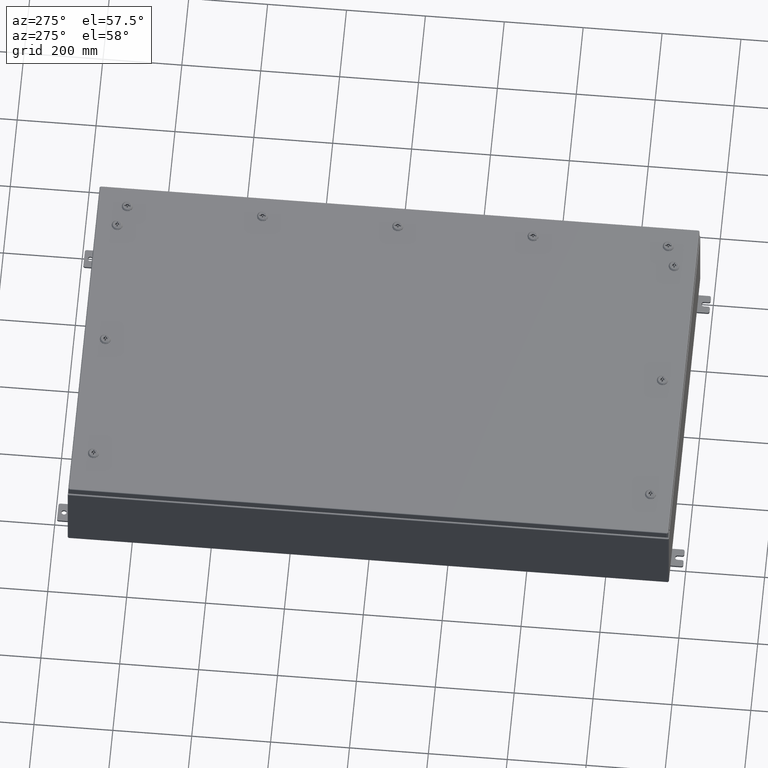
[diagram: clean part render]
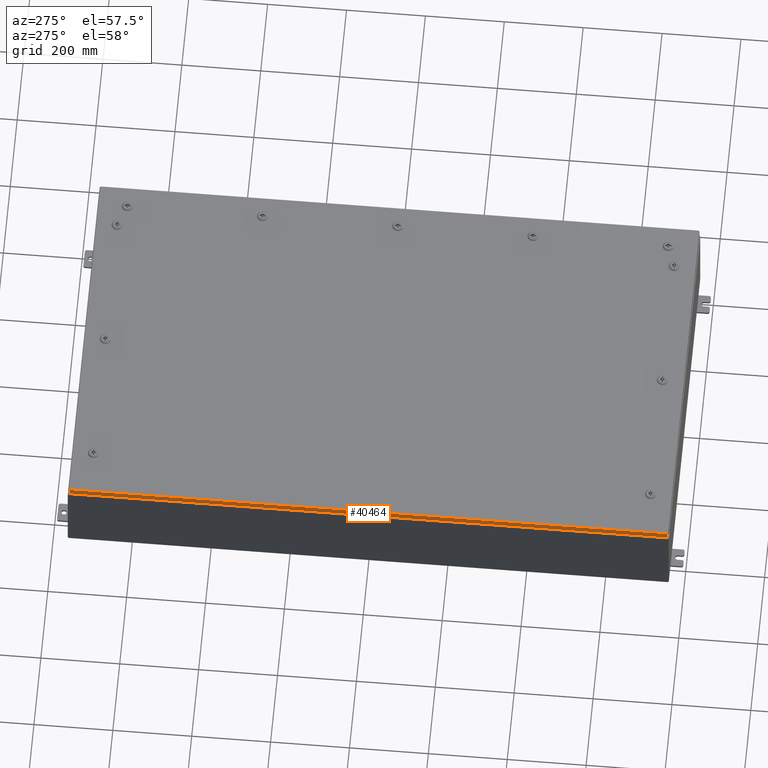
[diagram: same view with one face highlighted and labeled with its STEP entity id]
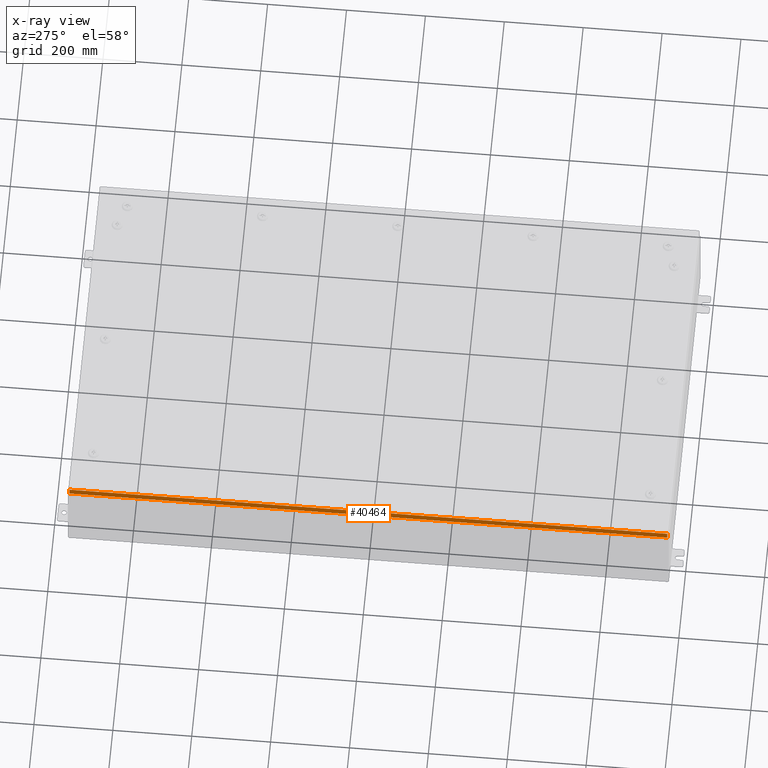
[diagram: x-ray of the same camera — body ghosted, the highlighted face saturated]
A machine part, auxiliary view. The second image highlights one B-rep face of the part: STEP entity #40464.
The next image is the same camera in x-ray: the body ghosted, the highlighted face saturated — about 0% of this face is hidden behind the body in this view.
In plain terms, the highlighted planar face has unit normal (1, -0, -0).
Its self-contained STEP definition (entity closure, byte-faithful):
#992 = VERTEX_POINT ( 'NONE', #52677 ) ;
#1313 = EDGE_LOOP ( 'NONE', ( #9502, #9865, #52238, #65732 ) ) ;
#3720 = FACE_OUTER_BOUND ( 'NONE', #1313, .T. ) ;
#4888 = VECTOR ( 'NONE', #61884, 39.37007874015748100 ) ;
#5756 = CARTESIAN_POINT ( 'NONE',  ( -17.93749999999999600, 29.84865786437627500, -0.08769999999999567000 ) ) ;
#5802 = DIRECTION ( 'NONE',  ( -7.300136601023486500E-017, -1.000000000000000000, -7.300136601023502500E-017 ) ) ;
#9502 = ORIENTED_EDGE ( 'NONE', *, *, #39392, .F. ) ;
#9775 = LINE ( 'NONE', #66155, #50664 ) ;
#9865 = ORIENTED_EDGE ( 'NONE', *, *, #24947, .T. ) ;
#9929 = DIRECTION ( 'NONE',  ( 1.000000000000000000, -7.300136601023464300E-017, -3.034122441942816500E-015 ) ) ;
#13304 = EDGE_CURVE ( 'NONE', #61148, #43018, #34972, .T. ) ;
#17044 = CARTESIAN_POINT ( 'NONE',  ( -17.93750000000000000, -29.84865786437625700, -0.07469999999999976700 ) ) ;
#17997 = LINE ( 'NONE', #17044, #58984 ) ;
#24720 = LINE ( 'NONE', #48562, #65669 ) ;
#24947 = EDGE_CURVE ( 'NONE', #28314, #43018, #9775, .T. ) ;
#28314 = VERTEX_POINT ( 'NONE', #5756 ) ;
#34104 = DIRECTION ( 'NONE',  ( -3.034122441942816500E-015, 6.982962677686267500E-015, -1.000000000000000000 ) ) ;
#34972 = LINE ( 'NONE', #45723, #4888 ) ;
#39392 = EDGE_CURVE ( 'NONE', #28314, #992, #24720, .T. ) ;
#39488 = EDGE_CURVE ( 'NONE', #992, #61148, #17997, .T. ) ;
#39739 = CARTESIAN_POINT ( 'NONE',  ( -17.93750000000000000, -29.84865786437625300, -0.7949999999999996000 ) ) ;
#40464 = ADVANCED_FACE ( 'NONE', ( #3720 ), #57816, .F. ) ;
#40879 = AXIS2_PLACEMENT_3D ( 'NONE', #41900, #9929, #47276 ) ;
#41900 = CARTESIAN_POINT ( 'NONE',  ( -17.93749999999999600, 1.309462002808583700E-015, 5.468538495836083800E-014 ) ) ;
#43018 = VERTEX_POINT ( 'NONE', #55446 ) ;
#45723 = CARTESIAN_POINT ( 'NONE',  ( -17.93750000000000000, -29.93749999999998900, -0.7949999999999997100 ) ) ;
#47276 = DIRECTION ( 'NONE',  ( -3.034122441942816500E-015, 0.0000000000000000000, -1.000000000000000000 ) ) ;
#48562 = CARTESIAN_POINT ( 'NONE',  ( -17.93750000000000000, -29.93749999999998900, -0.08770000000000004200 ) ) ;
#49026 = DIRECTION ( 'NONE',  ( -3.034122441942816500E-015, 6.982962677686267500E-015, -1.000000000000000000 ) ) ;
#50664 = VECTOR ( 'NONE', #34104, 39.37007874015748100 ) ;
#52238 = ORIENTED_EDGE ( 'NONE', *, *, #13304, .F. ) ;
#52677 = CARTESIAN_POINT ( 'NONE',  ( -17.93750000000000000, -29.84865786437625700, -0.08769999999999787700 ) ) ;
#55446 = CARTESIAN_POINT ( 'NONE',  ( -17.93749999999999600, 29.84865786437628200, -0.7949999999999923800 ) ) ;
#57816 = PLANE ( 'NONE',  #40879 ) ;
#58984 = VECTOR ( 'NONE', #49026, 39.37007874015748100 ) ;
#61148 = VERTEX_POINT ( 'NONE', #39739 ) ;
#61884 = DIRECTION ( 'NONE',  ( 7.300136601023501300E-017, 1.000000000000000000, 1.231898051422716000E-016 ) ) ;
#65669 = VECTOR ( 'NONE', #5802, 39.37007874015748100 ) ;
#65732 = ORIENTED_EDGE ( 'NONE', *, *, #39488, .F. ) ;
#66155 = CARTESIAN_POINT ( 'NONE',  ( -17.93749999999999600, 29.84865786437627800, 2.631174488043270700E-013 ) ) ;